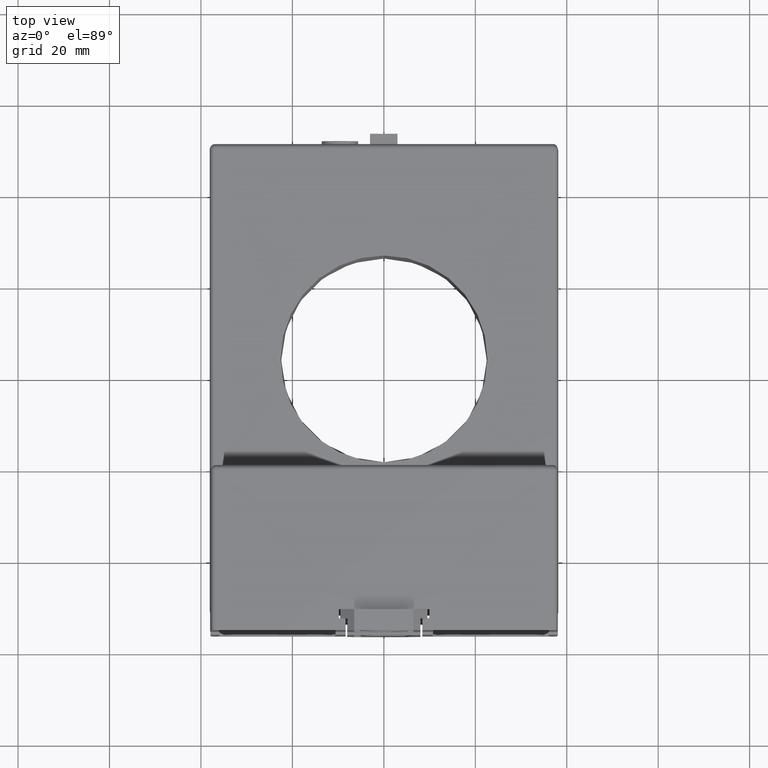
[diagram: clean part render]
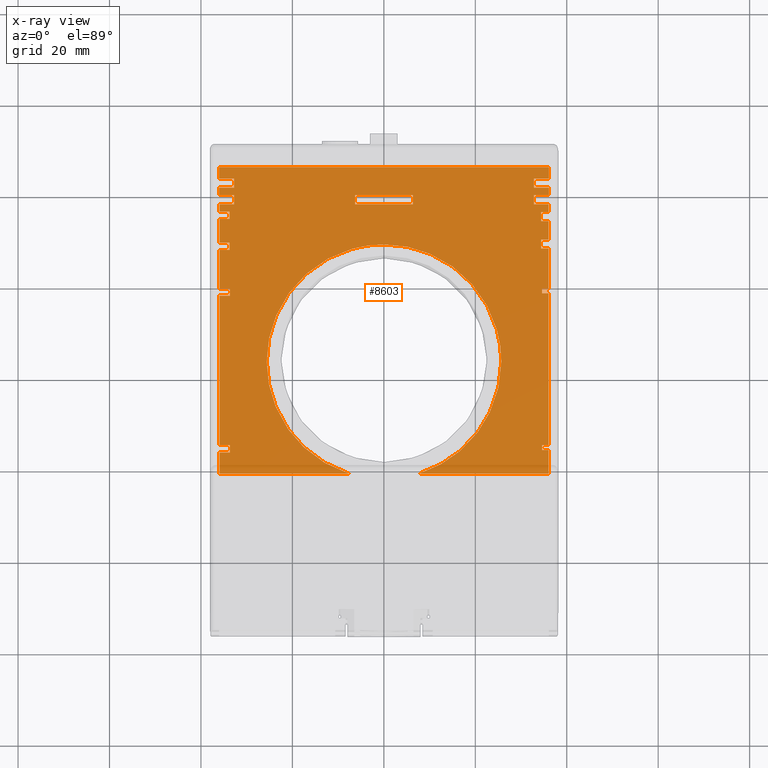
[diagram: x-ray — body ghosted, one internal face saturated and labeled with its STEP entity id]
A machine part, top view, then the same camera in x-ray: the body is ghosted and one INTERNAL B-rep face — a face not visible from any outside direction — is saturated and labeled: STEP entity #8603.
In plain terms, the highlighted planar face has unit normal (0, 0, 1).
Its self-contained STEP definition (entity closure, byte-faithful):
#46 = LINE ( 'NONE', #5561, #6622 ) ;
#132 = VERTEX_POINT ( 'NONE', #26092 ) ;
#278 = VECTOR ( 'NONE', #28109, 39.37007874015748143 ) ;
#287 = DIRECTION ( 'NONE',  ( 0.000000000000000000, 1.000000000000000000, 0.000000000000000000 ) ) ;
#295 = LINE ( 'NONE', #32117, #31911 ) ;
#324 = ORIENTED_EDGE ( 'NONE', *, *, #15992, .T. ) ;
#414 = CARTESIAN_POINT ( 'NONE',  ( 0.001330692535681425289, 0.7887062137664843098, -1.420000000000035678 ) ) ;
#421 = EDGE_CURVE ( 'NONE', #2042, #26533, #15189, .T. ) ;
#473 = ORIENTED_EDGE ( 'NONE', *, *, #1315, .T. ) ;
#633 = VERTEX_POINT ( 'NONE', #8562 ) ;
#675 = CARTESIAN_POINT ( 'NONE',  ( 0.3584436919230654106, -1.592551115794693217, -1.420000000000035456 ) ) ;
#872 = CARTESIAN_POINT ( 'NONE',  ( 0.9904200852333504557, -0.8575739838811753391, -1.420000000000035900 ) ) ;
#926 = VECTOR ( 'NONE', #30076, 39.37007874015748143 ) ;
#938 = B_SPLINE_CURVE_WITH_KNOTS ( 'NONE', 1,
 ( #15199, #6996 ),
 .UNSPECIFIED., .F., .F.,
 ( 2, 2 ),
 ( 0.000000000000000000, 1.000000000000000000 ),
 .UNSPECIFIED. ) ;
#985 = CARTESIAN_POINT ( 'NONE',  ( -1.418669307464319074, 0.7887062127044094373, -1.420000000000035678 ) ) ;
#991 = VECTOR ( 'NONE', #3736, 39.37007874015748143 ) ;
#1011 = EDGE_CURVE ( 'NONE', #4624, #15248, #8000, .T. ) ;
#1098 = EDGE_CURVE ( 'NONE', #33081, #11632, #22572, .T. ) ;
#1102 = ORIENTED_EDGE ( 'NONE', *, *, #12345, .F. ) ;
#1125 = DIRECTION ( 'NONE',  ( 1.000000000000000000, 0.000000000000000000, 0.000000000000000000 ) ) ;
#1157 = VERTEX_POINT ( 'NONE', #29109 ) ;
#1192 = LINE ( 'NONE', #12207, #26935 ) ;
#1285 = VERTEX_POINT ( 'NONE', #16492 ) ;
#1299 = VECTOR ( 'NONE', #25318, 39.37007874015748143 ) ;
#1315 = EDGE_CURVE ( 'NONE', #6152, #32832, #5136, .T. ) ;
#1375 = AXIS2_PLACEMENT_3D ( 'NONE', #26344, #12666, #23503 ) ;
#1513 = ORIENTED_EDGE ( 'NONE', *, *, #3333, .T. ) ;
#1565 = DIRECTION ( 'NONE',  ( -1.000000000000000000, 0.000000000000000000, 0.000000000000000000 ) ) ;
#1576 = DIRECTION ( 'NONE',  ( 0.000000000000000000, 1.000000000000000000, 0.000000000000000000 ) ) ;
#1620 = DIRECTION ( 'NONE',  ( 0.000000000000000000, -1.000000000000000000, 0.000000000000000000 ) ) ;
#1672 = DIRECTION ( 'NONE',  ( 0.000000000000000000, 1.000000000000000000, 0.000000000000000000 ) ) ;
#1675 = DIRECTION ( 'NONE',  ( -1.000000000000000000, 0.000000000000000000, 0.000000000000000000 ) ) ;
#1680 = LINE ( 'NONE', #22998, #12761 ) ;
#1710 = CARTESIAN_POINT ( 'NONE',  ( -0.3050615351999130254, -1.608677397312214596, -1.419999910211181327 ) ) ;
#1740 = EDGE_CURVE ( 'NONE', #4477, #1753, #18176, .T. ) ;
#1753 = VERTEX_POINT ( 'NONE', #29000 ) ;
#1835 = LINE ( 'NONE', #34363, #21816 ) ;
#1865 = LINE ( 'NONE', #34400, #7059 ) ;
#2042 = VERTEX_POINT ( 'NONE', #18796 ) ;
#2045 = VECTOR ( 'NONE', #32132, 39.37007874015748143 ) ;
#2082 = ORIENTED_EDGE ( 'NONE', *, *, #29877, .T. ) ;
#2206 = CARTESIAN_POINT ( 'NONE',  ( 1.011330692552816046, -0.5799544812344143985, -1.420000000000035012 ) ) ;
#2346 = CARTESIAN_POINT ( 'NONE',  ( -0.9064294357931769186, -0.1985523193966928779, -1.420000000000035678 ) ) ;
#2361 = CARTESIAN_POINT ( 'NONE',  ( 0.3266097572142154237, 0.3121827396563974788, -1.420000000000035678 ) ) ;
#2399 = CARTESIAN_POINT ( 'NONE',  ( 1.361454861824224594, -1.365788402071153484, -1.420000000000035678 ) ) ;
#2434 = DIRECTION ( 'NONE',  ( -1.000000000000000000, 0.000000000000000000, 0.000000000000000000 ) ) ;
#2496 = CARTESIAN_POINT ( 'NONE',  ( 1.418831963535680973, 0.4850330491733748084, -1.420000000000035678 ) ) ;
#2534 = CARTESIAN_POINT ( 'NONE',  ( 0.4490721613303202964, 0.2614663403235156780, -1.420000000000035678 ) ) ;
#2678 = VECTOR ( 'NONE', #15187, 39.37007874015748143 ) ;
#2729 = LINE ( 'NONE', #19225, #19045 ) ;
#2903 = CARTESIAN_POINT ( 'NONE',  ( -1.414187583697525508, -1.364792489149293520, -1.420000441919822665 ) ) ;
#2941 = DIRECTION ( 'NONE',  ( 0.000000000000000000, 1.000000000000000000, 0.000000000000000000 ) ) ;
#3146 = DIRECTION ( 'NONE',  ( 1.000000000000000000, 0.000000000000000000, 0.000000000000000000 ) ) ;
#3181 = VECTOR ( 'NONE', #22901, 39.37007874015748143 ) ;
#3189 = CARTESIAN_POINT ( 'NONE',  ( 1.011330691140811089, -0.6462937883212008794, -1.419999820301289351 ) ) ;
#3229 = VERTEX_POINT ( 'NONE', #5812 ) ;
#3230 = CARTESIAN_POINT ( 'NONE',  ( -0.06500861704703872479, 0.3637062121611770449, -1.420000000000035900 ) ) ;
#3333 = EDGE_CURVE ( 'NONE', #27840, #12948, #1192, .T. ) ;
#3362 = CARTESIAN_POINT ( 'NONE',  ( 0.6345273280536640748, -1.434954494893685206, -1.420000000000035900 ) ) ;
#3398 = CARTESIAN_POINT ( 'NONE',  ( 1.291330692455681106, 0.7887062125716495231, -1.420000000000035678 ) ) ;
#3437 = CARTESIAN_POINT ( 'NONE',  ( -1.414054451196324669, -0.07876300713319409064, -1.420000131600996029 ) ) ;
#3591 = DIRECTION ( 'NONE',  ( 1.000000000000000000, 0.000000000000000000, 0.000000000000000000 ) ) ;
#3736 = DIRECTION ( 'NONE',  ( 0.000000000000000000, -1.000000000000000000, 0.000000000000000000 ) ) ;
#3893 = VERTEX_POINT ( 'NONE', #10562 ) ;
#4036 = VERTEX_POINT ( 'NONE', #30599 ) ;
#4039 = VERTEX_POINT ( 'NONE', #6617 ) ;
#4104 = DIRECTION ( 'NONE',  ( 0.000000000000000000, 1.000000000000000000, 0.000000000000000000 ) ) ;
#4280 = LINE ( 'NONE', #33770, #19097 ) ;
#4288 = CARTESIAN_POINT ( 'NONE',  ( -1.414187585628259747, 0.5833514321257559088, -1.419999999644478539 ) ) ;
#4376 = VECTOR ( 'NONE', #14354, 39.37007874015748143 ) ;
#4411 = CARTESIAN_POINT ( 'NONE',  ( 0.001330692463130098363, 0.3637062122856818958, -1.420000000000035678 ) ) ;
#4469 = ORIENTED_EDGE ( 'NONE', *, *, #15128, .T. ) ;
#4477 = VERTEX_POINT ( 'NONE', #12067 ) ;
#4504 = CARTESIAN_POINT ( 'NONE',  ( 0.5073491056151006040, 0.2303070844544554407, -1.420000000000035678 ) ) ;
#4624 = VERTEX_POINT ( 'NONE', #11139 ) ;
#4664 = CARTESIAN_POINT ( 'NONE',  ( 0.7623746330412988215, 0.02102397288189677277, -1.420000000000035678 ) ) ;
#4716 = CARTESIAN_POINT ( 'NONE',  ( 1.361454861535681404, -1.386685677826625884, -1.420000000000035678 ) ) ;
#4724 = VECTOR ( 'NONE', #9744, 39.37007874015748143 ) ;
#4727 = CARTESIAN_POINT ( 'NONE',  ( 0.001330692535681425289, 0.5833514321676575021, -1.420000000000035678 ) ) ;
#4839 = CARTESIAN_POINT ( 'NONE',  ( 1.418831963741275626, 0.4064404705337881785, -1.420000000000035678 ) ) ;
#4884 = DIRECTION ( 'NONE',  ( -1.000000000000000000, 0.000000000000000000, 0.000000000000000000 ) ) ;
#4949 = EDGE_CURVE ( 'NONE', #27530, #12908, #9681, .T. ) ;
#5019 = EDGE_CURVE ( 'NONE', #34597, #27476, #30592, .T. ) ;
#5020 = ORIENTED_EDGE ( 'NONE', *, *, #21939, .T. ) ;
#5062 = EDGE_CURVE ( 'NONE', #24356, #3229, #32911, .T. ) ;
#5077 = B_SPLINE_CURVE_WITH_KNOTS ( 'NONE', 3,
 ( #20861, #15335, #29003, #15869, #2361, #2534, #4504, #24214, #21175, #4664, #13386, #23501, #28850, #24014, #26537, #7498, #2206, #10347 ),
 .UNSPECIFIED., .F., .F.,
 ( 4, 2, 2, 2, 2, 2, 2, 2, 4 ),
 ( 0.000000000000000000, 0.1250000000000001388, 0.2500000000000002776, 0.3750000000000003331, 0.5000000000000003331, 0.6250000000000003331, 0.7500000000000002220, 0.8750000000000002220, 1.000000000000000000 ),
 .UNSPECIFIED. ) ;
#5136 = LINE ( 'NONE', #29826, #9345 ) ;
#5240 = CARTESIAN_POINT ( 'NONE',  ( -0.9422536109115853264, -1.010398586555582678, -1.420000000000035678 ) ) ;
#5268 = CARTESIAN_POINT ( 'NONE',  ( -1.414187583172884732, -0.5074395007052722173, -1.420000562157888169 ) ) ;
#5434 = ORIENTED_EDGE ( 'NONE', *, *, #8761, .T. ) ;
#5456 = DIRECTION ( 'NONE',  ( -1.000000000000000000, 0.000000000000000000, 0.000000000000000000 ) ) ;
#5561 = CARTESIAN_POINT ( 'NONE',  ( 0.001330692535681425289, 0.8517062118635414514, -1.420000000000035678 ) ) ;
#5683 = EDGE_CURVE ( 'NONE', #4624, #28898, #295, .T. ) ;
#5812 = CARTESIAN_POINT ( 'NONE',  ( -1.288669307384318952, 0.9317062122662715939, -1.420000000000035678 ) ) ;
#5816 = EDGE_CURVE ( 'NONE', #11353, #32868, #31300, .T. ) ;
#5851 = EDGE_CURVE ( 'NONE', #27530, #11697, #33984, .T. ) ;
#5852 = CARTESIAN_POINT ( 'NONE',  ( 1.418831963535680973, -0.7117735373266260712, -1.420000000000035678 ) ) ;
#5888 = LINE ( 'NONE', #16738, #19531 ) ;
#5917 = LINE ( 'NONE', #22779, #24862 ) ;
#6097 = CARTESIAN_POINT ( 'NONE',  ( -1.288669307250980278, 0.7887062132354488719, -1.420000000000035678 ) ) ;
#6141 = DIRECTION ( 'NONE',  ( 1.000000000000000000, 0.000000000000000000, 0.000000000000000000 ) ) ;
#6152 = VERTEX_POINT ( 'NONE', #3398 ) ;
#6193 = VERTEX_POINT ( 'NONE', #27362 ) ;
#6278 = CARTESIAN_POINT ( 'NONE',  ( -1.328083068757964558, 0.3777017721347248891, -1.420000000000035678 ) ) ;
#6368 = LINE ( 'NONE', #23243, #4724 ) ;
#6476 = CARTESIAN_POINT ( 'NONE',  ( -1.414187583697525508, -1.364792489149293520, -1.420000441919822665 ) ) ;
#6520 = DIRECTION ( 'NONE',  ( 1.000000000000000000, 0.000000000000000000, 0.000000000000000000 ) ) ;
#6533 = VECTOR ( 'NONE', #25092, 39.37007874015748143 ) ;
#6548 = CARTESIAN_POINT ( 'NONE',  ( 0.8759685266080748933, -1.154177443008570503, -1.420000000000035678 ) ) ;
#6617 = CARTESIAN_POINT ( 'NONE',  ( -1.414187585650007906, 0.6450846144160000684, -1.419999999644382171 ) ) ;
#6622 = VECTOR ( 'NONE', #19230, 39.37007874015748143 ) ;
#6726 = CARTESIAN_POINT ( 'NONE',  ( 1.421330692535681006, 0.7887062125716495231, -1.420000000000035678 ) ) ;
#6778 = LINE ( 'NONE', #28438, #9909 ) ;
#6812 = DIRECTION ( 'NONE',  ( -1.000000000000000000, 0.000000000000000000, 0.000000000000000000 ) ) ;
#6820 = ORIENTED_EDGE ( 'NONE', *, *, #14545, .F. ) ;
#6970 = ORIENTED_EDGE ( 'NONE', *, *, #16497, .T. ) ;
#6984 = CARTESIAN_POINT ( 'NONE',  ( 1.421330692535681006, 0.9317062123591653977, -1.420000000000035678 ) ) ;
#6996 = CARTESIAN_POINT ( 'NONE',  ( -1.414187585650007906, 0.6450846144160000684, -1.419999999644382171 ) ) ;
#7059 = VECTOR ( 'NONE', #33871, 39.37007874015748143 ) ;
#7120 = DIRECTION ( 'NONE',  ( -1.000000000000000000, 0.000000000000000000, 0.000000000000000000 ) ) ;
#7155 = VECTOR ( 'NONE', #14074, 39.37007874015748143 ) ;
#7164 = CARTESIAN_POINT ( 'NONE',  ( 1.421330692535681006, 0.9802062121733741140, -1.420000000000035678 ) ) ;
#7182 = ORIENTED_EDGE ( 'NONE', *, *, #9901, .T. ) ;
#7385 = ORIENTED_EDGE ( 'NONE', *, *, #9117, .T. ) ;
#7397 = LINE ( 'NONE', #4716, #30420 ) ;
#7498 = CARTESIAN_POINT ( 'NONE',  ( 1.004861737431981483, -0.5142740727167185444, -1.420000000000035678 ) ) ;
#7637 = EDGE_CURVE ( 'NONE', #34936, #1285, #6368, .T. ) ;
#7829 = ORIENTED_EDGE ( 'NONE', *, *, #34475, .T. ) ;
#7864 = B_SPLINE_CURVE_WITH_KNOTS ( 'NONE', 1,
 ( #17110, #3437 ),
 .UNSPECIFIED., .F., .F.,
 ( 2, 2 ),
 ( 0.000000000000000000, 0.9985535221582539922 ),
 .UNSPECIFIED. ) ;
#7889 = ORIENTED_EDGE ( 'NONE', *, *, #28464, .F. ) ;
#7891 = CARTESIAN_POINT ( 'NONE',  ( 0.001330692535681425289, 0.9317062125449586674, -1.420000000000035678 ) ) ;
#7893 = B_SPLINE_CURVE_WITH_KNOTS ( 'NONE', 3,
 ( #3189, #11719, #30880, #872, #14352, #33540, #31070, #6548, #17399, #22708, #25015, #19513, #3362, #30347, #24851, #20233, #675, #17038 ),
 .UNSPECIFIED., .F., .F.,
 ( 4, 2, 2, 2, 2, 2, 2, 2, 4 ),
 ( 0.000000000000000000, 0.1249999999999999722, 0.2499999999999999445, 0.3749999999999998890, 0.4999999999999998890, 0.6249999999999998890, 0.7499999999999997780, 0.8749999999999998890, 1.000000000000000000 ),
 .UNSPECIFIED. ) ;
#7915 = CARTESIAN_POINT ( 'NONE',  ( -0.3304013789520131583, -1.600620792156952632, -1.420000000000035900 ) ) ;
#7938 = EDGE_LOOP ( 'NONE', ( #4469, #5434, #324, #30405 ) ) ;
#7943 = CARTESIAN_POINT ( 'NONE',  ( -1.414187583697525508, -1.364792489149293520, -1.420000441919822665 ) ) ;
#7986 = CARTESIAN_POINT ( 'NONE',  ( -0.3050615351999130254, -1.608677397312214596, -1.419999910211181327 ) ) ;
#8000 = LINE ( 'NONE', #2496, #24650 ) ;
#8044 = ORIENTED_EDGE ( 'NONE', *, *, #5062, .T. ) ;
#8369 = CARTESIAN_POINT ( 'NONE',  ( -1.418669307464319074, 1.028706212923375940, -1.420000000000035678 ) ) ;
#8435 = LINE ( 'NONE', #24936, #6533 ) ;
#8468 = VERTEX_POINT ( 'NONE', #19958 ) ;
#8531 = CARTESIAN_POINT ( 'NONE',  ( 1.418831963653897521, 0.6423705763057342422, -1.420000000000035678 ) ) ;
#8562 = CARTESIAN_POINT ( 'NONE',  ( 1.421330692535681006, 0.8517062120959174587, -1.420000000000035678 ) ) ;
#8565 = ORIENTED_EDGE ( 'NONE', *, *, #30954, .T. ) ;
#8603 = ADVANCED_FACE ( 'NONE', ( #9828, #29385 ), #26159, .T. ) ;
#8703 = CARTESIAN_POINT ( 'NONE',  ( -0.1306890255027152448, 0.3572372565126835098, -1.420000000000035678 ) ) ;
#8761 = EDGE_CURVE ( 'NONE', #18011, #15018, #5888, .T. ) ;
#8789 = LINE ( 'NONE', #27268, #17758 ) ;
#8815 = DIRECTION ( 'NONE',  ( -1.000000000000000000, 0.000000000000000000, 0.000000000000000000 ) ) ;
#8885 = ORIENTED_EDGE ( 'NONE', *, *, #8980, .T. ) ;
#8907 = CARTESIAN_POINT ( 'NONE',  ( -0.4464075289528767754, 0.2614584960479552911, -1.420000000000035678 ) ) ;
#8915 = EDGE_CURVE ( 'NONE', #26794, #8468, #26190, .T. ) ;
#8980 = EDGE_CURVE ( 'NONE', #1753, #33100, #21552, .T. ) ;
#8992 = EDGE_CURVE ( 'NONE', #26349, #132, #6778, .T. ) ;
#9117 = EDGE_CURVE ( 'NONE', #3893, #24143, #1865, .T. ) ;
#9203 = CARTESIAN_POINT ( 'NONE',  ( 1.291330692215681086, -0.2899757833266252138, -1.420000000000035678 ) ) ;
#9204 = CARTESIAN_POINT ( 'NONE',  ( -1.324988121464318880, -1.396689887826626064, -1.420000000000035678 ) ) ;
#9209 = VECTOR ( 'NONE', #22138, 39.37007874015748143 ) ;
#9215 = ORIENTED_EDGE ( 'NONE', *, *, #11689, .T. ) ;
#9252 = DIRECTION ( 'NONE',  ( 0.000000000000000000, -1.000000000000000000, 0.000000000000000000 ) ) ;
#9275 = VECTOR ( 'NONE', #6812, 39.37007874015748143 ) ;
#9345 = VECTOR ( 'NONE', #10662, 39.37007874015748143 ) ;
#9355 = VECTOR ( 'NONE', #1576, 39.37007874015748143 ) ;
#9396 = LINE ( 'NONE', #9581, #19014 ) ;
#9417 = EDGE_CURVE ( 'NONE', #31548, #17308, #8435, .T. ) ;
#9424 = ORIENTED_EDGE ( 'NONE', *, *, #29136, .T. ) ;
#9445 = LINE ( 'NONE', #12616, #32702 ) ;
#9521 = CARTESIAN_POINT ( 'NONE',  ( -1.414054451196324669, -0.07876300713319409064, -1.420000131600996029 ) ) ;
#9571 = CARTESIAN_POINT ( 'NONE',  ( -0.3239516197840919820, 0.3121905837931311933, -1.420000000000035678 ) ) ;
#9581 = CARTESIAN_POINT ( 'NONE',  ( 1.361454861535681404, -0.03686139682662539080, -1.420000000000035678 ) ) ;
#9600 = VERTEX_POINT ( 'NONE', #32689 ) ;
#9606 = CARTESIAN_POINT ( 'NONE',  ( -1.414187585628259747, 0.5833514321257559088, -1.419999999644478539 ) ) ;
#9681 = LINE ( 'NONE', #31329, #11715 ) ;
#9744 = DIRECTION ( 'NONE',  ( 0.000000000000000000, -1.000000000000000000, 0.000000000000000000 ) ) ;
#9828 = FACE_BOUND ( 'NONE', #7938, .T. ) ;
#9844 = DIRECTION ( 'NONE',  ( 0.000000000000000000, -1.000000000000000000, 0.000000000000000000 ) ) ;
#9871 = CARTESIAN_POINT ( 'NONE',  ( -0.3553593658617482109, -1.591584404036486600, -1.420000000000035678 ) ) ;
#9901 = EDGE_CURVE ( 'NONE', #18316, #11781, #17790, .T. ) ;
#9909 = VECTOR ( 'NONE', #4104, 39.37007874015748143 ) ;
#10073 = CARTESIAN_POINT ( 'NONE',  ( -0.4287536908983334838, -1.560532072431041639, -1.420000000000035678 ) ) ;
#10237 = CARTESIAN_POINT ( 'NONE',  ( -0.8733012921943351659, -1.154174219775298438, -1.420000000000036122 ) ) ;
#10347 = CARTESIAN_POINT ( 'NONE',  ( 1.011330691140811089, -0.6462937883212008794, -1.419999820301289351 ) ) ;
#10396 = CARTESIAN_POINT ( 'NONE',  ( -1.008669307724318953, -0.6462937885555944950, -1.420000000000035678 ) ) ;
#10484 = ORIENTED_EDGE ( 'NONE', *, *, #28308, .T. ) ;
#10525 = CARTESIAN_POINT ( 'NONE',  ( -0.9571458350659994840, -0.3210147235013067757, -1.420000000000035678 ) ) ;
#10545 = VECTOR ( 'NONE', #3591, 39.37007874015748143 ) ;
#10562 = CARTESIAN_POINT ( 'NONE',  ( 1.418831963677555041, 0.7087062124012952768, -1.420000000000035678 ) ) ;
#10662 = DIRECTION ( 'NONE',  ( 1.000000000000000000, 0.000000000000000000, 0.000000000000000000 ) ) ;
#10708 = CARTESIAN_POINT ( 'NONE',  ( -0.9763371061216705726, -0.3842507604716753344, -1.420000000000035678 ) ) ;
#10890 = B_SPLINE_CURVE_WITH_KNOTS ( 'NONE', 3,
 ( #13548, #21529, #26677, #10708, #10525, #2346, #16198, #24360, #27354, #13874, #11228, #22048, #8907, #9571, #20393, #8703, #3230, #4411 ),
 .UNSPECIFIED., .F., .F.,
 ( 4, 2, 2, 2, 2, 2, 2, 2, 4 ),
 ( 0.000000000000000000, 0.1250000000000000000, 0.2500000000000000000, 0.3750000000000000000, 0.5000000000000000000, 0.6250000000000000000, 0.7500000000000000000, 0.8750000000000000000, 1.000000000000000000 ),
 .UNSPECIFIED. ) ;
#10957 = CARTESIAN_POINT ( 'NONE',  ( -1.328083068464318783, 0.3468351801733747797, -1.420000000000035678 ) ) ;
#11051 = ORIENTED_EDGE ( 'NONE', *, *, #29938, .T. ) ;
#11075 = VECTOR ( 'NONE', #22378, 39.37007874015748143 ) ;
#11139 = CARTESIAN_POINT ( 'NONE',  ( 1.418831963616866032, 0.5636256278506023287, -1.420000000000035678 ) ) ;
#11228 = CARTESIAN_POINT ( 'NONE',  ( -0.6148980486427946257, 0.1566668975101630223, -1.420000000000035678 ) ) ;
#11353 = VERTEX_POINT ( 'NONE', #17214 ) ;
#11421 = EDGE_CURVE ( 'NONE', #25299, #9600, #7397, .T. ) ;
#11422 = ORIENTED_EDGE ( 'NONE', *, *, #23319, .T. ) ;
#11621 = VERTEX_POINT ( 'NONE', #985 ) ;
#11632 = VERTEX_POINT ( 'NONE', #22646 ) ;
#11689 = EDGE_CURVE ( 'NONE', #13892, #16502, #29196, .T. ) ;
#11697 = VERTEX_POINT ( 'NONE', #6984 ) ;
#11715 = VECTOR ( 'NONE', #4884, 39.37007874015748143 ) ;
#11719 = CARTESIAN_POINT ( 'NONE',  ( 1.011330689388797888, -0.6995164710945287467, -1.420000000000035900 ) ) ;
#11781 = VERTEX_POINT ( 'NONE', #32386 ) ;
#12067 = CARTESIAN_POINT ( 'NONE',  ( -1.328083068757964558, 0.3159685887131625792, -1.420000000000035678 ) ) ;
#12207 = CARTESIAN_POINT ( 'NONE',  ( 0.001330692535681425289, 0.6423705772294920902, -1.420000000000035678 ) ) ;
#12259 = ORIENTED_EDGE ( 'NONE', *, *, #29307, .T. ) ;
#12345 = EDGE_CURVE ( 'NONE', #22762, #32868, #27719, .T. ) ;
#12349 = CARTESIAN_POINT ( 'NONE',  ( 1.291330692215681086, -0.2899757833266252138, -1.420000000000035678 ) ) ;
#12417 = ORIENTED_EDGE ( 'NONE', *, *, #4949, .T. ) ;
#12420 = DIRECTION ( 'NONE',  ( 0.000000000000000000, 1.000000000000000000, 0.000000000000000000 ) ) ;
#12424 = CARTESIAN_POINT ( 'NONE',  ( -1.354678329957649696, -1.428587290731498260, -1.420000000000035678 ) ) ;
#12502 = ORIENTED_EDGE ( 'NONE', *, *, #32512, .F. ) ;
#12616 = CARTESIAN_POINT ( 'NONE',  ( -1.288669307144319154, -0.2899757833266252138, -1.420000000000035678 ) ) ;
#12647 = CARTESIAN_POINT ( 'NONE',  ( 0.001330692535681425289, 0.7087062130850630970, -1.420000000000035678 ) ) ;
#12666 = DIRECTION ( 'NONE',  ( 0.000000000000000000, 0.000000000000000000, 1.000000000000000000 ) ) ;
#12701 = ORIENTED_EDGE ( 'NONE', *, *, #17877, .F. ) ;
#12761 = VECTOR ( 'NONE', #9844, 39.37007874015748143 ) ;
#12764 = ORIENTED_EDGE ( 'NONE', *, *, #30434, .T. ) ;
#12767 = CARTESIAN_POINT ( 'NONE',  ( -1.324988126918484221, -1.428587288192338711, -1.419999894623759751 ) ) ;
#12908 = VERTEX_POINT ( 'NONE', #8369 ) ;
#12913 = CARTESIAN_POINT ( 'NONE',  ( -0.5455062242451268473, -1.497112821648856285, -1.420000000000035900 ) ) ;
#12948 = VERTEX_POINT ( 'NONE', #8531 ) ;
#13060 = VERTEX_POINT ( 'NONE', #32473 ) ;
#13191 = ORIENTED_EDGE ( 'NONE', *, *, #421, .T. ) ;
#13194 = B_SPLINE_CURVE_WITH_KNOTS ( 'NONE', 3,
 ( #1710, #7915, #9871, #18395, #10073, #18753, #12913, #15910, #21063, #18064, #29050, #34403, #10237, #15546, #5240, #18591, #34922, #21228, #29584, #10396 ),
 .UNSPECIFIED., .F., .F.,
 ( 4, 2, 2, 2, 2, 2, 2, 2, 2, 4 ),
 ( 0.000000000000000000, 0.06250000000000013878, 0.1250000000000002776, 0.2500000000000003886, 0.3750000000000003886, 0.5000000000000003331, 0.6250000000000002220, 0.7500000000000002220, 0.8750000000000001110, 1.000000000000000000 ),
 .UNSPECIFIED. ) ;
#13300 = ORIENTED_EDGE ( 'NONE', *, *, #5683, .T. ) ;
#13386 = CARTESIAN_POINT ( 'NONE',  ( 0.8042913781055039957, -0.03006504694864875135, -1.420000000000035900 ) ) ;
#13428 = LINE ( 'NONE', #16957, #14500 ) ;
#13548 = CARTESIAN_POINT ( 'NONE',  ( -1.008669307724318953, -0.6462937885555944950, -1.420000000000035678 ) ) ;
#13734 = VERTEX_POINT ( 'NONE', #16051 ) ;
#13747 = VERTEX_POINT ( 'NONE', #21569 ) ;
#13874 = CARTESIAN_POINT ( 'NONE',  ( -0.6659870684607213098, 0.1147501524239631365, -1.420000000000035678 ) ) ;
#13892 = VERTEX_POINT ( 'NONE', #14432 ) ;
#13975 = CARTESIAN_POINT ( 'NONE',  ( 1.418831962542578706, -1.608657778252813086, -1.420000000075035462 ) ) ;
#14074 = DIRECTION ( 'NONE',  ( 0.000000000000000000, 1.000000000000000000, 0.000000000000000000 ) ) ;
#14352 = CARTESIAN_POINT ( 'NONE',  ( 0.9779456010910224650, -0.9092519776088617833, -1.420000000000035678 ) ) ;
#14354 = DIRECTION ( 'NONE',  ( 0.000000000000000000, -1.000000000000000000, 0.000000000000000000 ) ) ;
#14432 = CARTESIAN_POINT ( 'NONE',  ( 1.291330692455681106, 0.8517062120959174587, -1.420000000000035678 ) ) ;
#14500 = VECTOR ( 'NONE', #33087, 39.37007874015748143 ) ;
#14525 = EDGE_CURVE ( 'NONE', #29854, #1157, #18615, .T. ) ;
#14545 = EDGE_CURVE ( 'NONE', #4477, #25420, #21612, .T. ) ;
#15018 = VERTEX_POINT ( 'NONE', #16953 ) ;
#15128 = EDGE_CURVE ( 'NONE', #34602, #18011, #5917, .T. ) ;
#15187 = DIRECTION ( 'NONE',  ( 0.000000000000000000, 1.000000000000000000, 0.000000000000000000 ) ) ;
#15189 = LINE ( 'NONE', #26012, #26881 ) ;
#15199 = CARTESIAN_POINT ( 'NONE',  ( -1.414187585628259747, 0.7087062125785708044, -1.419999999644478539 ) ) ;
#15248 = VERTEX_POINT ( 'NONE', #4839 ) ;
#15302 = VERTEX_POINT ( 'NONE', #27202 ) ;
#15326 = CARTESIAN_POINT ( 'NONE',  ( 0.001330692535681425289, -0.01596412160215659320, -1.420000000000035678 ) ) ;
#15335 = CARTESIAN_POINT ( 'NONE',  ( 0.06762645931116334497, 0.3637062121731141073, -1.420000000000035900 ) ) ;
#15444 = ORIENTED_EDGE ( 'NONE', *, *, #9417, .F. ) ;
#15546 = CARTESIAN_POINT ( 'NONE',  ( -0.9218242002724040818, -1.059479229174654424, -1.420000000000035900 ) ) ;
#15568 = VERTEX_POINT ( 'NONE', #24709 ) ;
#15573 = VECTOR ( 'NONE', #31744, 39.37007874015748143 ) ;
#15737 = EDGE_CURVE ( 'NONE', #25299, #11632, #18665, .T. ) ;
#15869 = CARTESIAN_POINT ( 'NONE',  ( 0.2633737202755301876, 0.3313740107263321022, -1.420000000000035678 ) ) ;
#15910 = CARTESIAN_POINT ( 'NONE',  ( -0.6318696755203260240, -1.434960041036568157, -1.420000000000035678 ) ) ;
#15937 = CARTESIAN_POINT ( 'NONE',  ( 0.002322189035681169501, -1.608657778252813086, -1.420000000075035462 ) ) ;
#15992 = EDGE_CURVE ( 'NONE', #15018, #15302, #28920, .T. ) ;
#16051 = CARTESIAN_POINT ( 'NONE',  ( -1.414187585628259747, 0.7087062125785708044, -1.419999999644478539 ) ) ;
#16060 = CARTESIAN_POINT ( 'NONE',  ( -1.328083068757964558, 0.5833514322088503290, -1.420000000000035678 ) ) ;
#16106 = ORIENTED_EDGE ( 'NONE', *, *, #11421, .F. ) ;
#16161 = CARTESIAN_POINT ( 'NONE',  ( 1.354575978495681010, -0.2899757833266252138, -1.420000000000035678 ) ) ;
#16198 = CARTESIAN_POINT ( 'NONE',  ( -0.8752701799348415745, -0.1402753750824117240, -1.420000000000035678 ) ) ;
#16254 = CARTESIAN_POINT ( 'NONE',  ( 1.418831963682346320, -0.01596412166347565068, -1.420000000000035678 ) ) ;
#16259 = VECTOR ( 'NONE', #5456, 39.37007874015748143 ) ;
#16326 = VECTOR ( 'NONE', #3146, 39.37007874015748143 ) ;
#16467 = EDGE_CURVE ( 'NONE', #22762, #26349, #4280, .T. ) ;
#16492 = CARTESIAN_POINT ( 'NONE',  ( -1.288669307250980278, 0.7087062127811692980, -1.420000000000035678 ) ) ;
#16497 = EDGE_CURVE ( 'NONE', #3229, #2042, #9445, .T. ) ;
#16502 = VERTEX_POINT ( 'NONE', #31639 ) ;
#16738 = CARTESIAN_POINT ( 'NONE',  ( 0.2513306924956815180, -0.2899757833266252138, -1.420000000000035678 ) ) ;
#16757 = CARTESIAN_POINT ( 'NONE',  ( -1.324988121413966491, -1.364792485651460607, -1.419999999947423319 ) ) ;
#16923 = CARTESIAN_POINT ( 'NONE',  ( 0.2513306925256811319, 0.7887062125716495231, -1.420000000000035678 ) ) ;
#16953 = CARTESIAN_POINT ( 'NONE',  ( 0.2513306925256811319, 0.7087062124012952768, -1.420000000000035678 ) ) ;
#16957 = CARTESIAN_POINT ( 'NONE',  ( 1.418831963535680973, 0.6727493171733759381, -1.420000000000035678 ) ) ;
#17038 = CARTESIAN_POINT ( 'NONE',  ( 0.3077238690959842593, -1.608677243442411475, -1.419999821759328595 ) ) ;
#17040 = LINE ( 'NONE', #27868, #4376 ) ;
#17110 = CARTESIAN_POINT ( 'NONE',  ( -1.324988121145287412, -0.07876301052909587264, -1.419999999702824756 ) ) ;
#17214 = CARTESIAN_POINT ( 'NONE',  ( 1.361454861847291475, -0.01596412152468793325, -1.420000000000035678 ) ) ;
#17308 = VERTEX_POINT ( 'NONE', #34577 ) ;
#17319 = LINE ( 'NONE', #33319, #1299 ) ;
#17323 = EDGE_CURVE ( 'NONE', #29854, #25677, #13194, .T. ) ;
#17326 = CARTESIAN_POINT ( 'NONE',  ( 1.354575978525681235, 0.3276955226741740113, -1.420000000000035678 ) ) ;
#17399 = CARTESIAN_POINT ( 'NONE',  ( 0.8480680081845655138, -1.199429944186536590, -1.420000000000035678 ) ) ;
#17555 = LINE ( 'NONE', #28376, #16259 ) ;
#17607 = B_SPLINE_CURVE_WITH_KNOTS ( 'NONE', 1,
 ( #19099, #22093 ),
 .UNSPECIFIED., .F., .F.,
 ( 2, 2 ),
 ( 0.000000000000000000, 1.000000000000000000 ),
 .UNSPECIFIED. ) ;
#17633 = ORIENTED_EDGE ( 'NONE', *, *, #19743, .T. ) ;
#17758 = VECTOR ( 'NONE', #2941, 39.37007874015748143 ) ;
#17767 = EDGE_CURVE ( 'NONE', #1157, #11781, #24895, .T. ) ;
#17790 = B_SPLINE_CURVE_WITH_KNOTS ( 'NONE', 3,
 ( #12767, #12424, #34250, #31766 ),
 .UNSPECIFIED., .F., .F.,
 ( 4, 4 ),
 ( 0.000000000000000000, 1.000000000000000000 ),
 .UNSPECIFIED. ) ;
#17877 = EDGE_CURVE ( 'NONE', #19877, #31548, #2729, .T. ) ;
#18010 = DIRECTION ( 'NONE',  ( 0.000000000000000000, -1.000000000000000000, 0.000000000000000000 ) ) ;
#18011 = VERTEX_POINT ( 'NONE', #16923 ) ;
#18064 = CARTESIAN_POINT ( 'NONE',  ( -0.7479529074579941428, -1.325639982221355151, -1.420000000000035900 ) ) ;
#18164 = LINE ( 'NONE', #12647, #26867 ) ;
#18176 = LINE ( 'NONE', #25996, #9275 ) ;
#18182 = EDGE_CURVE ( 'NONE', #32889, #6193, #34779, .T. ) ;
#18244 = LINE ( 'NONE', #4727, #15573 ) ;
#18316 = VERTEX_POINT ( 'NONE', #26050 ) ;
#18395 = CARTESIAN_POINT ( 'NONE',  ( -0.4045116259964890992, -1.571552061865145733, -1.420000000000035678 ) ) ;
#18504 = ORIENTED_EDGE ( 'NONE', *, *, #8915, .T. ) ;
#18591 = CARTESIAN_POINT ( 'NONE',  ( -0.9752905059880367933, -0.9092542410454729218, -1.420000000000035900 ) ) ;
#18615 = LINE ( 'NONE', #15937, #26248 ) ;
#18665 = LINE ( 'NONE', #21500, #19691 ) ;
#18753 = CARTESIAN_POINT ( 'NONE',  ( -0.5000475650157407692, -1.524676967532492045, -1.420000000000035456 ) ) ;
#18776 = ORIENTED_EDGE ( 'NONE', *, *, #5851, .F. ) ;
#18796 = CARTESIAN_POINT ( 'NONE',  ( -1.288669307384318952, 0.8517062120959174587, -1.420000000000035678 ) ) ;
#18819 = DIRECTION ( 'NONE',  ( 0.000000000000000000, 1.000000000000000000, 0.000000000000000000 ) ) ;
#18845 = EDGE_CURVE ( 'NONE', #633, #13892, #46, .T. ) ;
#18982 = VECTOR ( 'NONE', #27714, 39.37007874015748143 ) ;
#19014 = VECTOR ( 'NONE', #20236, 39.37007874015748143 ) ;
#19045 = VECTOR ( 'NONE', #27370, 39.37007874015748143 ) ;
#19097 = VECTOR ( 'NONE', #7120, 39.37007874015748143 ) ;
#19099 = CARTESIAN_POINT ( 'NONE',  ( -1.414054453092952857, -0.01496820969134263907, -1.419999712598874142 ) ) ;
#19121 = ORIENTED_EDGE ( 'NONE', *, *, #29025, .F. ) ;
#19138 = CARTESIAN_POINT ( 'NONE',  ( -1.324988121413966491, -1.364792485651460607, -1.419999999947423319 ) ) ;
#19154 = ORIENTED_EDGE ( 'NONE', *, *, #22326, .F. ) ;
#19225 = CARTESIAN_POINT ( 'NONE',  ( 1.418831963366137705, -1.605031776326625970, -1.419999999840035443 ) ) ;
#19230 = DIRECTION ( 'NONE',  ( -1.000000000000000000, 0.000000000000000000, 0.000000000000000000 ) ) ;
#19389 = EDGE_CURVE ( 'NONE', #26533, #11621, #17040, .T. ) ;
#19416 = ORIENTED_EDGE ( 'NONE', *, *, #30803, .T. ) ;
#19513 = CARTESIAN_POINT ( 'NONE',  ( 0.6750971230350001351, -1.400598729560962763, -1.420000000000035900 ) ) ;
#19518 = VECTOR ( 'NONE', #18819, 39.37007874015748143 ) ;
#19531 = VECTOR ( 'NONE', #9252, 39.37007874015748143 ) ;
#19532 = EDGE_CURVE ( 'NONE', #18316, #27476, #26077, .T. ) ;
#19538 = ORIENTED_EDGE ( 'NONE', *, *, #23704, .T. ) ;
#19662 = CARTESIAN_POINT ( 'NONE',  ( 0.001330692535681425289, 0.4064404709035873697, -1.420000000000035678 ) ) ;
#19691 = VECTOR ( 'NONE', #27169, 39.37007874015748143 ) ;
#19743 = EDGE_CURVE ( 'NONE', #132, #15248, #25144, .T. ) ;
#19867 = ORIENTED_EDGE ( 'NONE', *, *, #26558, .T. ) ;
#19877 = VERTEX_POINT ( 'NONE', #20357 ) ;
#19958 = CARTESIAN_POINT ( 'NONE',  ( -1.414187585650007906, 0.3777017722883322937, -1.419999999644382171 ) ) ;
#20196 = CARTESIAN_POINT ( 'NONE',  ( 1.011330691140811089, -0.6462937883212008794, -1.419999820301289351 ) ) ;
#20233 = CARTESIAN_POINT ( 'NONE',  ( 0.4075956353671245092, -1.572518823952136824, -1.420000000000035678 ) ) ;
#20236 = DIRECTION ( 'NONE',  ( 0.000000000000000000, -1.000000000000000000, 0.000000000000000000 ) ) ;
#20357 = CARTESIAN_POINT ( 'NONE',  ( 1.418831963614381797, -1.407582954071543213, -1.419999999960035453 ) ) ;
#20393 = CARTESIAN_POINT ( 'NONE',  ( -0.2607320403050878976, 0.3313614341677180164, -1.420000000000035678 ) ) ;
#20861 = CARTESIAN_POINT ( 'NONE',  ( 0.001330692463130098363, 0.3637062122856818958, -1.420000000000035678 ) ) ;
#21063 = CARTESIAN_POINT ( 'NONE',  ( -0.6724311781808525179, -1.400593849762642229, -1.420000000000036122 ) ) ;
#21110 = VERTEX_POINT ( 'NONE', #20196 ) ;
#21149 = VECTOR ( 'NONE', #287, 39.37007874015748143 ) ;
#21175 = CARTESIAN_POINT ( 'NONE',  ( 0.6686424501733617687, 0.1147441493152093761, -1.420000000000035678 ) ) ;
#21228 = CARTESIAN_POINT ( 'NONE',  ( -1.004485203171656238, -0.7524720359210758103, -1.420000000000036566 ) ) ;
#21284 = CARTESIAN_POINT ( 'NONE',  ( -1.328083068464318783, 0.6142180236733739696, -1.420000000000035678 ) ) ;
#21360 = CARTESIAN_POINT ( 'NONE',  ( -1.008669307724318953, -0.6462937885555944950, -1.420000000000035678 ) ) ;
#21404 = CARTESIAN_POINT ( 'NONE',  ( 1.354575978308999895, 0.6423705751733740366, -1.420000000000035678 ) ) ;
#21487 = EDGE_CURVE ( 'NONE', #4036, #21110, #5077, .T. ) ;
#21500 = CARTESIAN_POINT ( 'NONE',  ( 0.001330692535681425289, -1.365788402241541188, -1.420000000000035678 ) ) ;
#21529 = CARTESIAN_POINT ( 'NONE',  ( -1.008669307489223010, -0.5799980212889428444, -1.420000000000035678 ) ) ;
#21541 = ORIENTED_EDGE ( 'NONE', *, *, #16467, .T. ) ;
#21552 = B_SPLINE_CURVE_WITH_KNOTS ( 'NONE', 1,
 ( #31272, #28809 ),
 .UNSPECIFIED., .F., .F.,
 ( 2, 2 ),
 ( 0.000000000000000000, 1.000000000000000000 ),
 .UNSPECIFIED. ) ;
#21569 = CARTESIAN_POINT ( 'NONE',  ( -1.324988121060647561, -0.01496820547215803321, -1.419999999725840567 ) ) ;
#21612 = LINE ( 'NONE', #10957, #21149 ) ;
#21816 = VECTOR ( 'NONE', #1672, 39.37007874015748143 ) ;
#21847 = LINE ( 'NONE', #27335, #18982 ) ;
#21939 = EDGE_CURVE ( 'NONE', #8468, #25420, #21847, .T. ) ;
#22048 = CARTESIAN_POINT ( 'NONE',  ( -0.5046924374162488069, 0.2303141433998686372, -1.420000000000035678 ) ) ;
#22093 = CARTESIAN_POINT ( 'NONE',  ( -1.324988121060647561, -0.01496820547215803321, -1.419999999725840567 ) ) ;
#22138 = DIRECTION ( 'NONE',  ( 1.000000000000000000, 0.000000000000000000, 0.000000000000000000 ) ) ;
#22275 = ORIENTED_EDGE ( 'NONE', *, *, #5019, .T. ) ;
#22313 = ORIENTED_EDGE ( 'NONE', *, *, #1011, .F. ) ;
#22326 = EDGE_CURVE ( 'NONE', #15568, #13747, #1835, .T. ) ;
#22378 = DIRECTION ( 'NONE',  ( 0.000000000000000000, -1.000000000000000000, 0.000000000000000000 ) ) ;
#22571 = CARTESIAN_POINT ( 'NONE',  ( 1.418831963535680973, 0.1558656926733746340, -1.420000000000035678 ) ) ;
#22572 = LINE ( 'NONE', #5852, #11075 ) ;
#22646 = CARTESIAN_POINT ( 'NONE',  ( 1.418831963682346320, -1.365788402514179101, -1.420000000000035678 ) ) ;
#22708 = CARTESIAN_POINT ( 'NONE',  ( 0.7852757188318989501, -1.285330049502815042, -1.420000000000035678 ) ) ;
#22762 = VERTEX_POINT ( 'NONE', #33325 ) ;
#22779 = CARTESIAN_POINT ( 'NONE',  ( 0.001330692535681425289, 0.7887062137664843098, -1.420000000000035678 ) ) ;
#22901 = DIRECTION ( 'NONE',  ( 0.000000000000000000, -1.000000000000000000, 0.000000000000000000 ) ) ;
#22998 = CARTESIAN_POINT ( 'NONE',  ( -1.418669307464319074, 0.9802062126733740444, -1.420000000000035678 ) ) ;
#23243 = CARTESIAN_POINT ( 'NONE',  ( -1.288669307144319154, -0.2899757833266252138, -1.420000000000035678 ) ) ;
#23319 = EDGE_CURVE ( 'NONE', #16502, #11697, #25609, .T. ) ;
#23501 = CARTESIAN_POINT ( 'NONE',  ( 0.8779386239608581999, -0.1402706582203045171, -1.420000000000035678 ) ) ;
#23503 = DIRECTION ( 'NONE',  ( 1.000000000000000000, 0.000000000000000000, 0.000000000000000000 ) ) ;
#23622 = ORIENTED_EDGE ( 'NONE', *, *, #21487, .T. ) ;
#23704 = EDGE_CURVE ( 'NONE', #33081, #13060, #17555, .T. ) ;
#23745 = ORIENTED_EDGE ( 'NONE', *, *, #5816, .T. ) ;
#23772 = ORIENTED_EDGE ( 'NONE', *, *, #18182, .F. ) ;
#23827 = ORIENTED_EDGE ( 'NONE', *, *, #1740, .T. ) ;
#24014 = CARTESIAN_POINT ( 'NONE',  ( 0.9598150642804752497, -0.3210114758766627330, -1.420000000000035678 ) ) ;
#24101 = ORIENTED_EDGE ( 'NONE', *, *, #7637, .T. ) ;
#24131 = ORIENTED_EDGE ( 'NONE', *, *, #1098, .F. ) ;
#24143 = VERTEX_POINT ( 'NONE', #32404 ) ;
#24214 = CARTESIAN_POINT ( 'NONE',  ( 0.6175641502850326425, 0.1566739566571193898, -1.420000000000035678 ) ) ;
#24356 = VERTEX_POINT ( 'NONE', #25797 ) ;
#24360 = CARTESIAN_POINT ( 'NONE',  ( -0.8016370521903398716, -0.03006033038817532144, -1.420000000000035678 ) ) ;
#24650 = VECTOR ( 'NONE', #32181, 39.37007874015748143 ) ;
#24666 = LINE ( 'NONE', #16161, #19518 ) ;
#24709 = CARTESIAN_POINT ( 'NONE',  ( -1.324988121145287412, -0.07876301052909587264, -1.419999999702824756 ) ) ;
#24851 = CARTESIAN_POINT ( 'NONE',  ( 0.5027637634891982676, -1.524641911877347322, -1.420000000000035456 ) ) ;
#24862 = VECTOR ( 'NONE', #1125, 39.37007874015748143 ) ;
#24895 = LINE ( 'NONE', #32543, #7155 ) ;
#24936 = CARTESIAN_POINT ( 'NONE',  ( 0.002322189035681169501, -1.608657778252813086, -1.420000000075035462 ) ) ;
#25015 = CARTESIAN_POINT ( 'NONE',  ( 0.7506097285849369083, -1.325635097715455180, -1.420000000000035678 ) ) ;
#25092 = DIRECTION ( 'NONE',  ( -1.000000000000000000, 0.000000000000000000, 0.000000000000000000 ) ) ;
#25144 = LINE ( 'NONE', #19662, #16326 ) ;
#25299 = VERTEX_POINT ( 'NONE', #2399 ) ;
#25318 = DIRECTION ( 'NONE',  ( -1.000000000000000000, 0.000000000000000000, 0.000000000000000000 ) ) ;
#25358 = ORIENTED_EDGE ( 'NONE', *, *, #17323, .T. ) ;
#25420 = VERTEX_POINT ( 'NONE', #6278 ) ;
#25572 = LINE ( 'NONE', #31627, #3181 ) ;
#25609 = LINE ( 'NONE', #25787, #10545 ) ;
#25677 = VERTEX_POINT ( 'NONE', #21360 ) ;
#25787 = CARTESIAN_POINT ( 'NONE',  ( 1.356330692535681059, 0.9317062121733740154, -1.420000000000035678 ) ) ;
#25797 = CARTESIAN_POINT ( 'NONE',  ( -1.418669307464319074, 0.9317062123591653977, -1.420000000000035678 ) ) ;
#25910 = LINE ( 'NONE', #9203, #9355 ) ;
#25996 = CARTESIAN_POINT ( 'NONE',  ( 0.001330692535681425289, 0.3159685896746582956, -1.420000000000035678 ) ) ;
#26012 = CARTESIAN_POINT ( 'NONE',  ( 0.001330692535681425289, 0.8517062118635414514, -1.420000000000035678 ) ) ;
#26016 = CARTESIAN_POINT ( 'NONE',  ( -0.2486693074543189219, 0.7887062125716495231, -1.420000000000035678 ) ) ;
#26050 = CARTESIAN_POINT ( 'NONE',  ( -1.324988126918484221, -1.428587288192338711, -1.419999894623759751 ) ) ;
#26077 = LINE ( 'NONE', #9204, #30495 ) ;
#26092 = CARTESIAN_POINT ( 'NONE',  ( 1.354575978414492177, 0.4064404703383275308, -1.420000000000035678 ) ) ;
#26159 = PLANE ( 'NONE',  #1375 ) ;
#26190 = B_SPLINE_CURVE_WITH_KNOTS ( 'NONE', 1,
 ( #4288, #26292 ),
 .UNSPECIFIED., .F., .F.,
 ( 2, 2 ),
 ( 0.000000000000000000, 1.000000000000000000 ),
 .UNSPECIFIED. ) ;
#26222 = EDGE_CURVE ( 'NONE', #11353, #13060, #9396, .T. ) ;
#26248 = VECTOR ( 'NONE', #1565, 39.37007874015748143 ) ;
#26283 = EDGE_CURVE ( 'NONE', #24143, #6152, #25910, .T. ) ;
#26292 = CARTESIAN_POINT ( 'NONE',  ( -1.414187585650007906, 0.3777017722883322937, -1.419999999644382171 ) ) ;
#26344 = CARTESIAN_POINT ( 'NONE',  ( -1.418669307464319074, -1.608657779826625944, -1.420000000000035678 ) ) ;
#26349 = VERTEX_POINT ( 'NONE', #17326 ) ;
#26533 = VERTEX_POINT ( 'NONE', #34178 ) ;
#26537 = CARTESIAN_POINT ( 'NONE',  ( 0.9789859141246324281, -0.3842310528195059804, -1.420000000000035678 ) ) ;
#26558 = EDGE_CURVE ( 'NONE', #13734, #4039, #938, .T. ) ;
#26570 = CARTESIAN_POINT ( 'NONE',  ( 1.354575978414492177, 0.5636256279728039109, -1.420000000000035678 ) ) ;
#26677 = CARTESIAN_POINT ( 'NONE',  ( -1.002187775362989308, -0.5142543654203444170, -1.420000000000035678 ) ) ;
#26696 = VECTOR ( 'NONE', #8815, 39.37007874015748143 ) ;
#26700 = ORIENTED_EDGE ( 'NONE', *, *, #26222, .F. ) ;
#26794 = VERTEX_POINT ( 'NONE', #9606 ) ;
#26867 = VECTOR ( 'NONE', #32006, 39.37007874015748143 ) ;
#26881 = VECTOR ( 'NONE', #1675, 39.37007874015748143 ) ;
#26892 = ORIENTED_EDGE ( 'NONE', *, *, #19389, .T. ) ;
#26935 = VECTOR ( 'NONE', #6520, 39.37007874015748143 ) ;
#26992 = B_SPLINE_CURVE_WITH_KNOTS ( 'NONE', 3,
 ( #7943, #29611, #5268, #34606 ),
 .UNSPECIFIED., .F., .F.,
 ( 4, 4 ),
 ( 0.000000000000000000, 1.000000000000000000 ),
 .UNSPECIFIED. ) ;
#27169 = DIRECTION ( 'NONE',  ( 1.000000000000000000, 0.000000000000000000, 0.000000000000000000 ) ) ;
#27202 = CARTESIAN_POINT ( 'NONE',  ( -0.2486693074543189219, 0.7087062124012952768, -1.420000000000035678 ) ) ;
#27268 = CARTESIAN_POINT ( 'NONE',  ( -0.2486693074243185031, -0.2899757833266252138, -1.420000000000035678 ) ) ;
#27335 = CARTESIAN_POINT ( 'NONE',  ( 0.001330692535681425289, 0.3777017721755004387, -1.420000000000035678 ) ) ;
#27354 = CARTESIAN_POINT ( 'NONE',  ( -0.7597072448677396617, 0.02101796951661922402, -1.420000000000035678 ) ) ;
#27362 = CARTESIAN_POINT ( 'NONE',  ( -1.328083068757964558, 0.6450846149677027519, -1.420000000000035678 ) ) ;
#27370 = DIRECTION ( 'NONE',  ( 0.000000000000000000, -1.000000000000000000, 0.000000000000000000 ) ) ;
#27476 = VERTEX_POINT ( 'NONE', #19138 ) ;
#27530 = VERTEX_POINT ( 'NONE', #29783 ) ;
#27714 = DIRECTION ( 'NONE',  ( 1.000000000000000000, 0.000000000000000000, 0.000000000000000000 ) ) ;
#27719 = LINE ( 'NONE', #22571, #991 ) ;
#27840 = VERTEX_POINT ( 'NONE', #21404 ) ;
#27868 = CARTESIAN_POINT ( 'NONE',  ( -1.418669307464319074, 0.8202062121733740829, -1.420000000000035678 ) ) ;
#28109 = DIRECTION ( 'NONE',  ( 1.000000000000000000, 0.000000000000000000, 0.000000000000000000 ) ) ;
#28308 = EDGE_CURVE ( 'NONE', #25677, #4036, #10890, .T. ) ;
#28376 = CARTESIAN_POINT ( 'NONE',  ( 0.001330692535681425289, -0.05775867143671575138, -1.420000000000035678 ) ) ;
#28438 = CARTESIAN_POINT ( 'NONE',  ( 1.354575978495681010, -0.2899757833266252138, -1.420000000000035678 ) ) ;
#28464 = EDGE_CURVE ( 'NONE', #34597, #31718, #26992, .T. ) ;
#28649 = CARTESIAN_POINT ( 'NONE',  ( -1.414054453092952857, -0.01496820969134263907, -1.419999712598874142 ) ) ;
#28809 = CARTESIAN_POINT ( 'NONE',  ( -1.414054453092952857, -0.01496820969134263907, -1.419999712598874142 ) ) ;
#28850 = CARTESIAN_POINT ( 'NONE',  ( 0.9090829765825957365, -0.1985555666861797408, -1.420000000000035900 ) ) ;
#28898 = VERTEX_POINT ( 'NONE', #26570 ) ;
#28920 = LINE ( 'NONE', #33144, #26696 ) ;
#29000 = CARTESIAN_POINT ( 'NONE',  ( -1.414187585628259747, 0.3159685886829783352, -1.419999999644478539 ) ) ;
#29003 = CARTESIAN_POINT ( 'NONE',  ( 0.1333701153192019262, 0.3572246800248414234, -1.420000000000035678 ) ) ;
#29025 = EDGE_CURVE ( 'NONE', #3893, #12948, #13428, .T. ) ;
#29032 = EDGE_CURVE ( 'NONE', #33100, #13747, #17607, .T. ) ;
#29050 = CARTESIAN_POINT ( 'NONE',  ( -0.7826090636984280868, -1.285325947003945091, -1.420000000000035678 ) ) ;
#29109 = CARTESIAN_POINT ( 'NONE',  ( -1.414187585433379635, -1.608657778808190830, -1.420000044112750048 ) ) ;
#29136 = EDGE_CURVE ( 'NONE', #15568, #31718, #7864, .T. ) ;
#29196 = LINE ( 'NONE', #12349, #2678 ) ;
#29307 = EDGE_CURVE ( 'NONE', #1285, #13734, #18164, .T. ) ;
#29385 = FACE_OUTER_BOUND ( 'NONE', #30097, .T. ) ;
#29584 = CARTESIAN_POINT ( 'NONE',  ( -1.008669307443759156, -0.6995589934396138077, -1.420000000000035900 ) ) ;
#29611 = CARTESIAN_POINT ( 'NONE',  ( -1.414187583172884732, -0.9361159949272829239, -1.420000562157888169 ) ) ;
#29690 = ORIENTED_EDGE ( 'NONE', *, *, #34578, .T. ) ;
#29783 = CARTESIAN_POINT ( 'NONE',  ( 1.421330692535681006, 1.028706212673374143, -1.420000000000035678 ) ) ;
#29826 = CARTESIAN_POINT ( 'NONE',  ( 0.001330692535681425289, 0.7887062137664843098, -1.420000000000035678 ) ) ;
#29854 = VERTEX_POINT ( 'NONE', #7986 ) ;
#29877 = EDGE_CURVE ( 'NONE', #28898, #27840, #24666, .T. ) ;
#29938 = EDGE_CURVE ( 'NONE', #21110, #17308, #7893, .T. ) ;
#30076 = DIRECTION ( 'NONE',  ( 1.000000000000000000, 0.000000000000000000, 0.000000000000000000 ) ) ;
#30097 = EDGE_LOOP ( 'NONE', ( #32787, #19154, #9424, #7889, #22275, #34593, #7182, #32933, #32588, #25358, #10484, #23622, #11051, #15444, #12701, #29690, #16106, #34752, #24131, #19538, #26700, #23745, #1102, #21541, #33977, #17633, #22313, #13300, #2082, #1513, #19121, #7385, #31298, #473, #12502, #30916, #9215, #11422, #18776, #12417, #19416, #8044, #6970, #13191, #26892, #8565, #24101, #12259, #19867, #7829, #23772, #12764, #18504, #5020, #6820, #23827, #8885 ) ) ;
#30194 = VECTOR ( 'NONE', #18010, 39.37007874015748143 ) ;
#30224 = VECTOR ( 'NONE', #6141, 39.37007874015748143 ) ;
#30232 = LINE ( 'NONE', #414, #278 ) ;
#30347 = CARTESIAN_POINT ( 'NONE',  ( 0.5481713384844776327, -1.497118362488591092, -1.420000000000035456 ) ) ;
#30405 = ORIENTED_EDGE ( 'NONE', *, *, #34518, .T. ) ;
#30420 = VECTOR ( 'NONE', #34209, 39.37007874015748143 ) ;
#30434 = EDGE_CURVE ( 'NONE', #32889, #26794, #18244, .T. ) ;
#30480 = CARTESIAN_POINT ( 'NONE',  ( 0.001330692535681425289, 0.6450846146685020877, -1.420000000000035678 ) ) ;
#30495 = VECTOR ( 'NONE', #12420, 39.37007874015748143 ) ;
#30592 = B_SPLINE_CURVE_WITH_KNOTS ( 'NONE', 1,
 ( #2903, #16757 ),
 .UNSPECIFIED., .F., .F.,
 ( 2, 2 ),
 ( 0.000000000000000000, 1.000000000000000000 ),
 .UNSPECIFIED. ) ;
#30599 = CARTESIAN_POINT ( 'NONE',  ( 0.001330692463130098363, 0.3637062122856818958, -1.420000000000035678 ) ) ;
#30772 = CARTESIAN_POINT ( 'NONE',  ( 1.418831963535680973, -0.05775867181407409734, -1.420000000000035678 ) ) ;
#30803 = EDGE_CURVE ( 'NONE', #12908, #24356, #1680, .T. ) ;
#30880 = CARTESIAN_POINT ( 'NONE',  ( 1.007136668587492734, -0.7524918467746318784, -1.420000000000035678 ) ) ;
#30916 = ORIENTED_EDGE ( 'NONE', *, *, #18845, .T. ) ;
#30954 = EDGE_CURVE ( 'NONE', #11621, #34936, #30232, .T. ) ;
#31070 = CARTESIAN_POINT ( 'NONE',  ( 0.9244797305839799195, -1.059476002758263924, -1.420000000000035456 ) ) ;
#31272 = CARTESIAN_POINT ( 'NONE',  ( -1.414187585628259747, 0.3159685886829783352, -1.419999999644478539 ) ) ;
#31298 = ORIENTED_EDGE ( 'NONE', *, *, #26283, .T. ) ;
#31300 = LINE ( 'NONE', #15326, #9209 ) ;
#31329 = CARTESIAN_POINT ( 'NONE',  ( 0.001330692535681425289, 1.028706212173374102, -1.420000000000035678 ) ) ;
#31548 = VERTEX_POINT ( 'NONE', #13975 ) ;
#31627 = CARTESIAN_POINT ( 'NONE',  ( 1.421330692535681006, 0.8202062121733740829, -1.420000000000035678 ) ) ;
#31639 = CARTESIAN_POINT ( 'NONE',  ( 1.291330692455681106, 0.9317062122662715939, -1.420000000000035678 ) ) ;
#31718 = VERTEX_POINT ( 'NONE', #9521 ) ;
#31744 = DIRECTION ( 'NONE',  ( -1.000000000000000000, 0.000000000000000000, 0.000000000000000000 ) ) ;
#31766 = CARTESIAN_POINT ( 'NONE',  ( -1.414054238059202717, -1.428587286036336668, -1.419999745517411371 ) ) ;
#31911 = VECTOR ( 'NONE', #2434, 39.37007874015748143 ) ;
#32006 = DIRECTION ( 'NONE',  ( -1.000000000000000000, 0.000000000000000000, 0.000000000000000000 ) ) ;
#32117 = CARTESIAN_POINT ( 'NONE',  ( 0.001330692535681425289, 0.5636256268635158051, -1.420000000000035678 ) ) ;
#32132 = DIRECTION ( 'NONE',  ( 0.000000000000000000, 1.000000000000000000, 0.000000000000000000 ) ) ;
#32181 = DIRECTION ( 'NONE',  ( 0.000000000000000000, -1.000000000000000000, 0.000000000000000000 ) ) ;
#32386 = CARTESIAN_POINT ( 'NONE',  ( -1.414054238059202717, -1.428587286036336668, -1.419999745517411371 ) ) ;
#32404 = CARTESIAN_POINT ( 'NONE',  ( 1.291330692455681106, 0.7087062124012952768, -1.420000000000035678 ) ) ;
#32473 = CARTESIAN_POINT ( 'NONE',  ( 1.361454861847291475, -0.05775867225709732655, -1.420000000000035678 ) ) ;
#32512 = EDGE_CURVE ( 'NONE', #633, #32832, #25572, .T. ) ;
#32543 = CARTESIAN_POINT ( 'NONE',  ( -1.414187585625777510, -2.250293787826626257, -1.420000000000035678 ) ) ;
#32588 = ORIENTED_EDGE ( 'NONE', *, *, #14525, .F. ) ;
#32689 = CARTESIAN_POINT ( 'NONE',  ( 1.361454861734122224, -1.407582954016017629, -1.420000000000035678 ) ) ;
#32702 = VECTOR ( 'NONE', #1620, 39.37007874015748143 ) ;
#32787 = ORIENTED_EDGE ( 'NONE', *, *, #29032, .T. ) ;
#32832 = VERTEX_POINT ( 'NONE', #6726 ) ;
#32868 = VERTEX_POINT ( 'NONE', #16254 ) ;
#32889 = VERTEX_POINT ( 'NONE', #16060 ) ;
#32911 = LINE ( 'NONE', #7891, #926 ) ;
#32933 = ORIENTED_EDGE ( 'NONE', *, *, #17767, .F. ) ;
#32949 = LINE ( 'NONE', #30480, #30224 ) ;
#33081 = VERTEX_POINT ( 'NONE', #30772 ) ;
#33087 = DIRECTION ( 'NONE',  ( 0.000000000000000000, -1.000000000000000000, 0.000000000000000000 ) ) ;
#33100 = VERTEX_POINT ( 'NONE', #28649 ) ;
#33144 = CARTESIAN_POINT ( 'NONE',  ( 0.001330692535681425289, 0.7087062130850630970, -1.420000000000035678 ) ) ;
#33319 = CARTESIAN_POINT ( 'NONE',  ( 0.001330692535681425289, -1.407582954713464396, -1.420000000000035678 ) ) ;
#33325 = CARTESIAN_POINT ( 'NONE',  ( 1.418831963535680973, 0.3276955224486744478, -1.420000000000035678 ) ) ;
#33540 = CARTESIAN_POINT ( 'NONE',  ( 0.9449212801009695406, -1.010400847700071436, -1.420000000000035678 ) ) ;
#33770 = CARTESIAN_POINT ( 'NONE',  ( 0.001330692535681425289, 0.3276955231749732467, -1.420000000000035678 ) ) ;
#33871 = DIRECTION ( 'NONE',  ( -1.000000000000000000, 0.000000000000000000, 0.000000000000000000 ) ) ;
#33977 = ORIENTED_EDGE ( 'NONE', *, *, #8992, .T. ) ;
#33984 = LINE ( 'NONE', #7164, #30194 ) ;
#34178 = CARTESIAN_POINT ( 'NONE',  ( -1.418669307464319074, 0.8517062121733740554, -1.420000000000035678 ) ) ;
#34209 = DIRECTION ( 'NONE',  ( 0.000000000000000000, -1.000000000000000000, 0.000000000000000000 ) ) ;
#34250 = CARTESIAN_POINT ( 'NONE',  ( -1.384368538170980267, -1.428587290731498260, -1.420000000000035678 ) ) ;
#34363 = CARTESIAN_POINT ( 'NONE',  ( -1.324988120828342497, -0.04686560832662543113, -1.419999999485996200 ) ) ;
#34400 = CARTESIAN_POINT ( 'NONE',  ( 0.001330692535681425289, 0.7087062130850630970, -1.420000000000035678 ) ) ;
#34403 = CARTESIAN_POINT ( 'NONE',  ( -0.8454118980251075222, -1.199434050680403985, -1.420000000000035900 ) ) ;
#34475 = EDGE_CURVE ( 'NONE', #4039, #6193, #32949, .T. ) ;
#34518 = EDGE_CURVE ( 'NONE', #15302, #34602, #8789, .T. ) ;
#34577 = CARTESIAN_POINT ( 'NONE',  ( 0.3077238690959842593, -1.608677243442411475, -1.419999821759328595 ) ) ;
#34578 = EDGE_CURVE ( 'NONE', #19877, #9600, #17319, .T. ) ;
#34593 = ORIENTED_EDGE ( 'NONE', *, *, #19532, .F. ) ;
#34597 = VERTEX_POINT ( 'NONE', #6476 ) ;
#34602 = VERTEX_POINT ( 'NONE', #26016 ) ;
#34606 = CARTESIAN_POINT ( 'NONE',  ( -1.414054451196324669, -0.07876300713319409064, -1.420000131600996029 ) ) ;
#34752 = ORIENTED_EDGE ( 'NONE', *, *, #15737, .T. ) ;
#34779 = LINE ( 'NONE', #21284, #2045 ) ;
#34922 = CARTESIAN_POINT ( 'NONE',  ( -0.9877487866443648290, -0.8575937960788813097, -1.420000000000035900 ) ) ;
#34936 = VERTEX_POINT ( 'NONE', #6097 ) ;